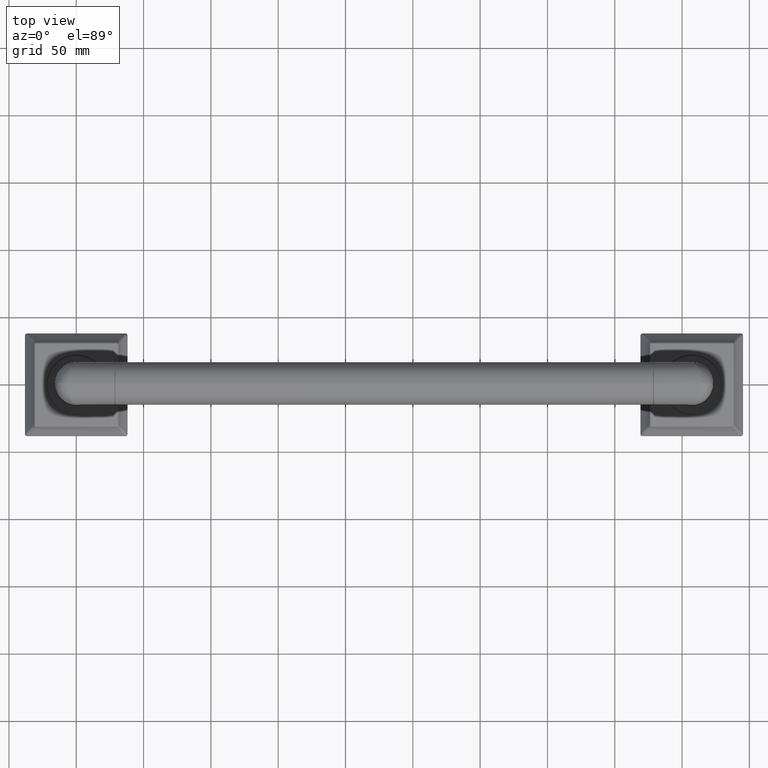
[diagram: clean part render]
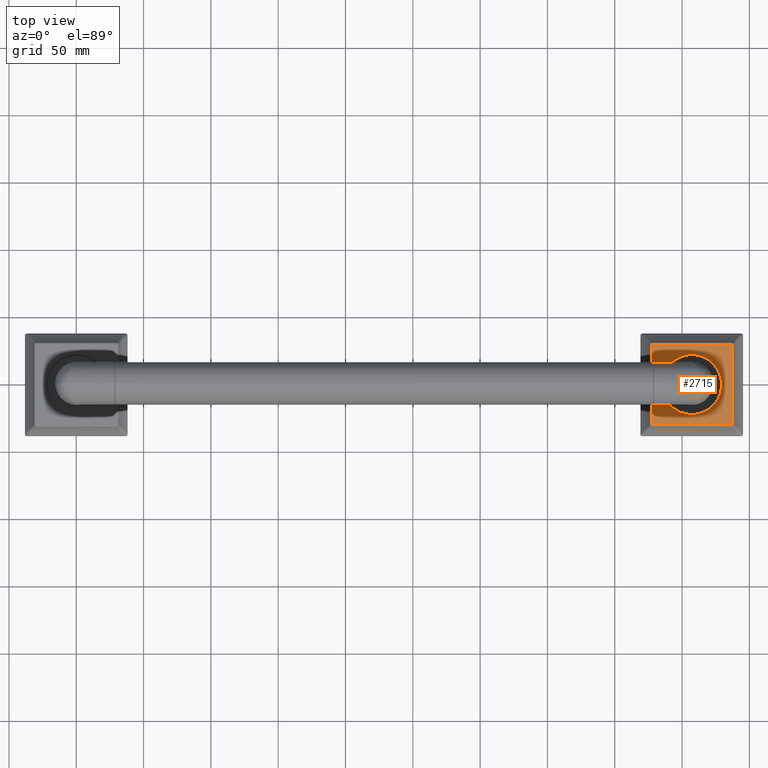
[diagram: same view with one face highlighted and labeled with its STEP entity id]
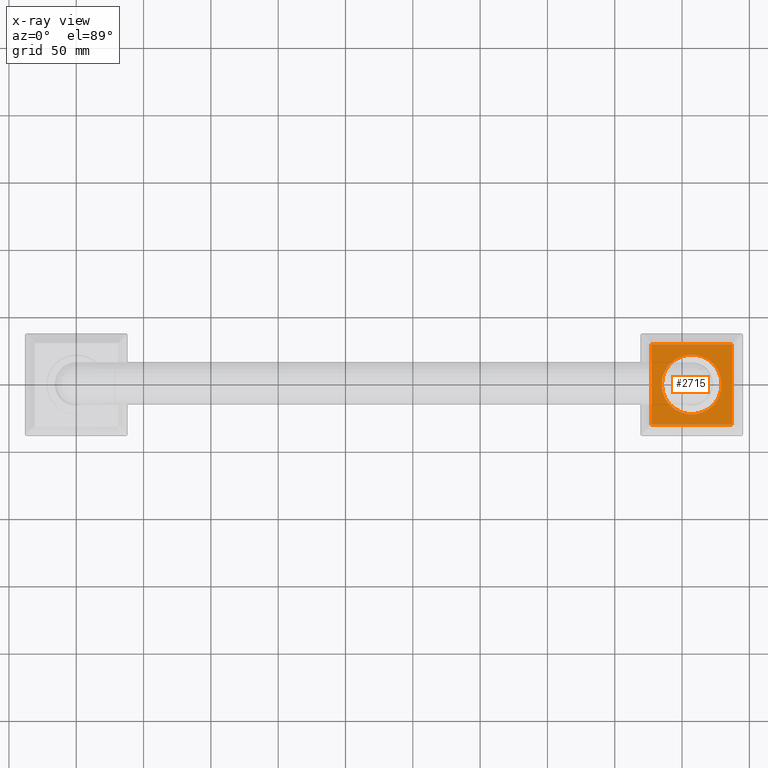
[diagram: x-ray of the same camera — body ghosted, the highlighted face saturated]
A machine part, top view. The second image highlights one B-rep face of the part: STEP entity #2715.
The next image is the same camera in x-ray: the body ghosted, the highlighted face saturated — about 0% of this face is hidden behind the body in this view.
In plain terms, the highlighted planar face has unit normal (0, 0, 1).
Its self-contained STEP definition (entity closure, byte-faithful):
#766=CARTESIAN_POINT('',(1.8E1,0.E0,5.25E-1));
#767=DIRECTION('',(0.E0,0.E0,-1.E0));
#768=DIRECTION('',(-1.E0,0.E0,0.E0));
#769=AXIS2_PLACEMENT_3D('',#766,#767,#768);
#784=DIRECTION('',(1.568783779359E-8,-1.E0,0.E0));
#785=VECTOR('',#784,2.358672312369E0);
#786=CARTESIAN_POINT('',(1.682066382531E1,1.179336137684E0,5.25E-1));
#787=LINE('',#786,#785);
#798=DIRECTION('',(1.E0,-3.903169588535E-8,0.E0));
#799=VECTOR('',#798,2.358672470648E0);
#800=CARTESIAN_POINT('',(1.682066386232E1,-1.179336174686E0,5.25E-1));
#801=LINE('',#800,#799);
#812=DIRECTION('',(-8.279287551237E-8,1.E0,0.E0));
#813=VECTOR('',#812,2.358672441435E0);
#814=CARTESIAN_POINT('',(1.917933633296E1,-1.179336266749E0,5.25E-1));
#815=LINE('',#814,#813);
#826=DIRECTION('',(-1.E0,-1.568783656978E-8,0.E0));
#827=VECTOR('',#826,2.358672312369E0);
#828=CARTESIAN_POINT('',(1.917933613768E1,1.179336174686E0,5.25E-1));
#829=LINE('',#828,#827);
#1092=CARTESIAN_POINT('',(1.8E1,0.E0,5.25E-1));
#1093=DIRECTION('',(0.E0,0.E0,-1.E0));
#1094=DIRECTION('',(1.E0,0.E0,0.E0));
#1095=AXIS2_PLACEMENT_3D('',#1092,#1093,#1094);
#1370=CARTESIAN_POINT('',(1.682066382531E1,1.179336137684E0,5.25E-1));
#1371=CARTESIAN_POINT('',(1.682066386232E1,-1.179336174686E0,5.25E-1));
#1372=VERTEX_POINT('',#1370);
#1373=VERTEX_POINT('',#1371);
#1374=CARTESIAN_POINT('',(1.917933613768E1,1.179336174686E0,5.25E-1));
#1375=VERTEX_POINT('',#1374);
#1376=CARTESIAN_POINT('',(1.917933633296E1,-1.179336266749E0,5.25E-1));
#1377=VERTEX_POINT('',#1376);
#1378=CARTESIAN_POINT('',(1.7125E1,0.E0,5.25E-1));
#1379=CARTESIAN_POINT('',(1.8875E1,0.E0,5.25E-1));
#1380=VERTEX_POINT('',#1378);
#1381=VERTEX_POINT('',#1379);
#2695=CARTESIAN_POINT('',(1.65E1,-1.5E0,5.25E-1));
#2696=DIRECTION('',(0.E0,0.E0,1.E0));
#2697=DIRECTION('',(1.E0,0.E0,0.E0));
#2698=AXIS2_PLACEMENT_3D('',#2695,#2696,#2697);
#2699=PLANE('',#2698);
#2701=ORIENTED_EDGE('',*,*,#2700,.F.);
#2703=ORIENTED_EDGE('',*,*,#2702,.F.);
#2705=ORIENTED_EDGE('',*,*,#2704,.F.);
#2707=ORIENTED_EDGE('',*,*,#2706,.F.);
#2708=EDGE_LOOP('',(#2701,#2703,#2705,#2707));
#2709=FACE_OUTER_BOUND('',#2708,.F.);
#2710=ORIENTED_EDGE('',*,*,#2685,.F.);
#2712=ORIENTED_EDGE('',*,*,#2711,.F.);
#2713=EDGE_LOOP('',(#2710,#2712));
#2714=FACE_BOUND('',#2713,.F.);
#2715=ADVANCED_FACE('',(#2709,#2714),#2699,.T.);
#770=CIRCLE('',#769,8.75E-1);
#1096=CIRCLE('',#1095,8.75E-1);
#2685=EDGE_CURVE('',#1380,#1381,#770,.T.);
#2700=EDGE_CURVE('',#1372,#1373,#787,.T.);
#2702=EDGE_CURVE('',#1375,#1372,#829,.T.);
#2704=EDGE_CURVE('',#1377,#1375,#815,.T.);
#2706=EDGE_CURVE('',#1373,#1377,#801,.T.);
#2711=EDGE_CURVE('',#1381,#1380,#1096,.T.);